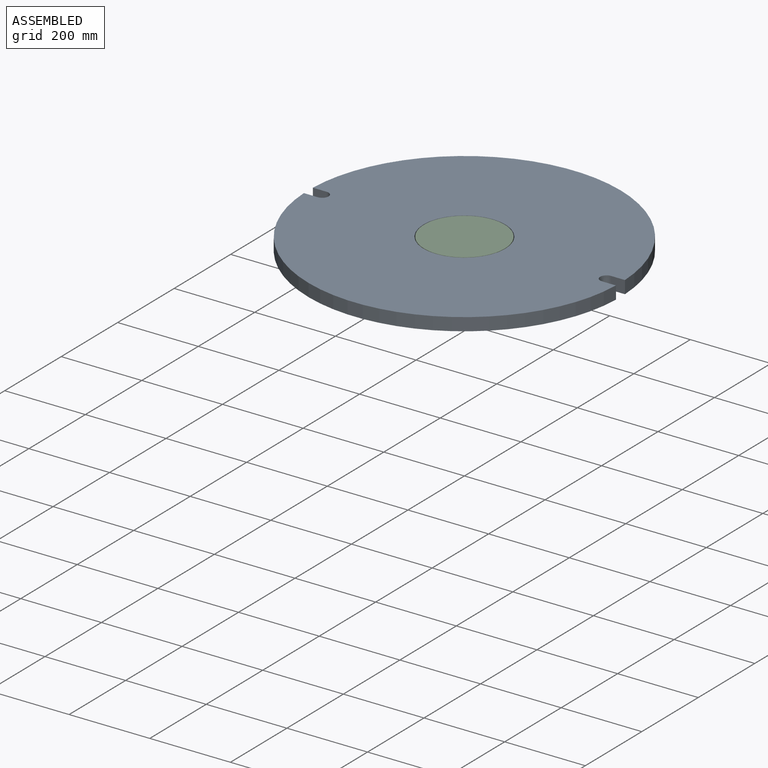
[diagram: assembled view]
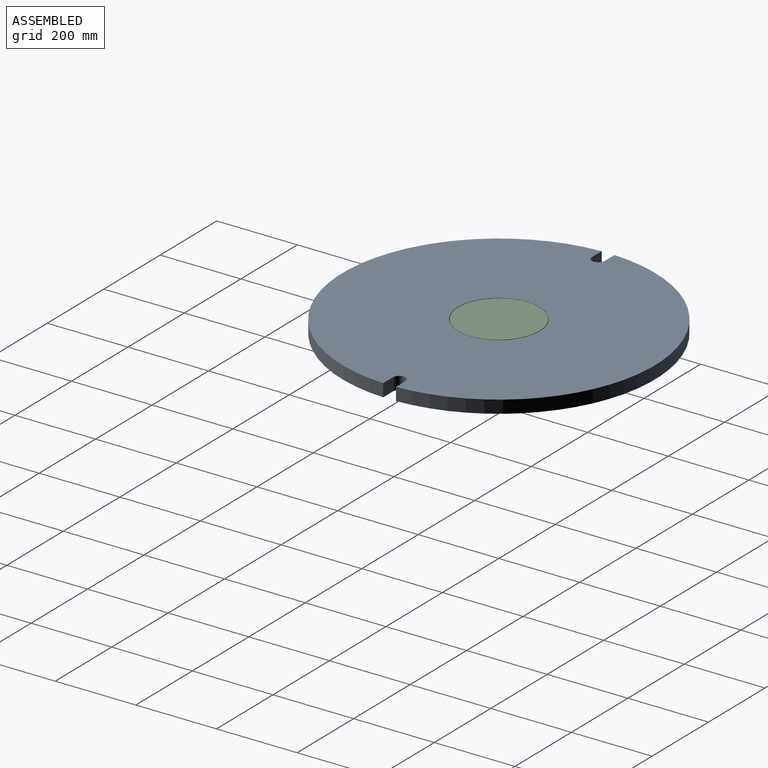
[diagram: assembled view, second angle]
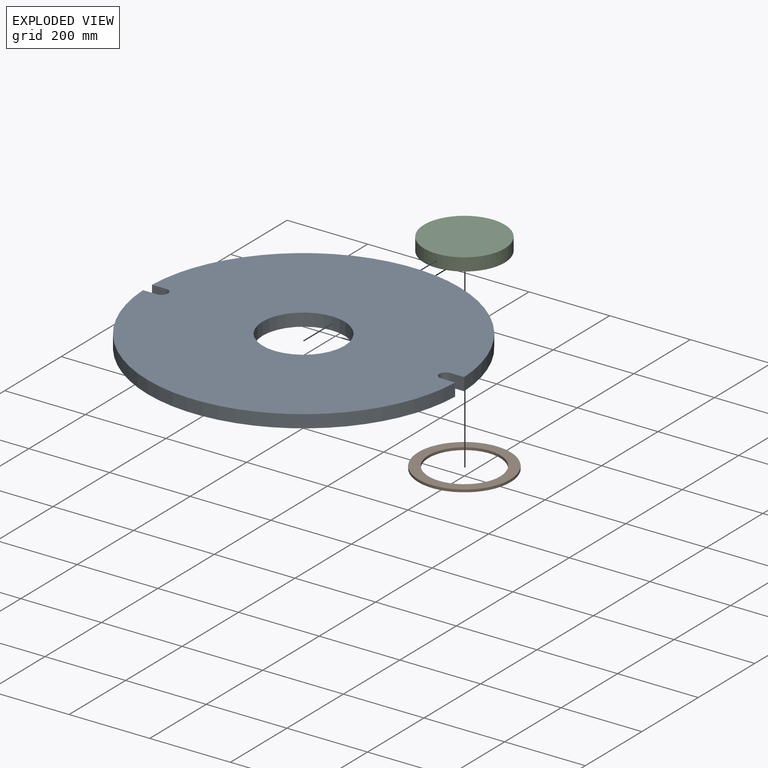
[diagram: exploded view]
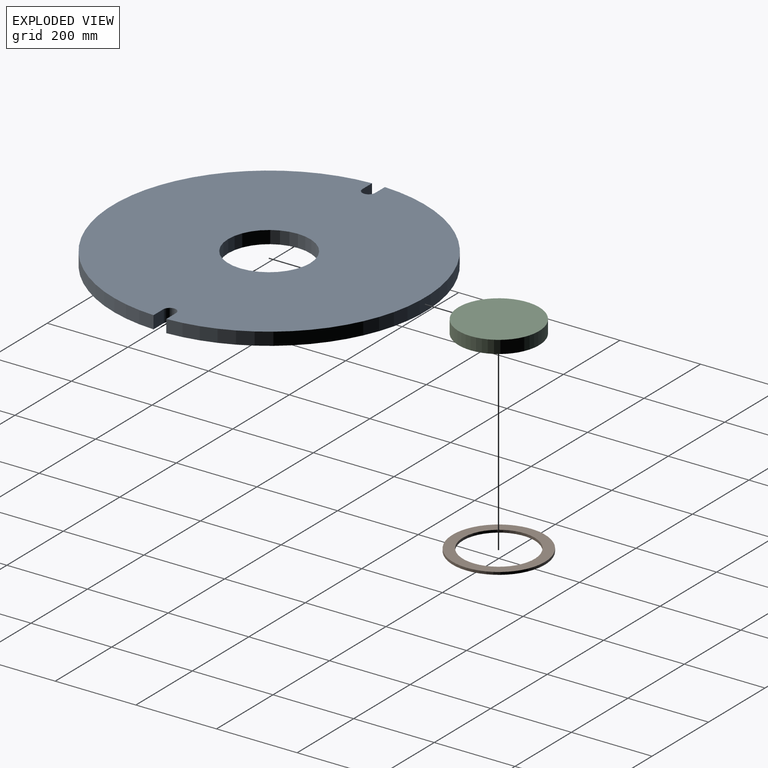
[diagram: exploded view, second angle]
ASSEMBLY  parts=3 mates=2
PART A: 11 faces, bbox 774x774.7x31.8 mm
  f0: cylinder r=387.35mm len=774.05mm, axis (0,0,-1), area 37628.1mm2, adj f1,f8,f9,f10
  f1: plane 34.6x31.75mm, normal (0,-1,0), area 1098.5mm2, adj f0,f2,f9,f10
  f2: cylinder r=15.88mm len=31.75mm, axis (0,0,-1), area 1583.5mm2, adj f1,f3,f9,f10
  f3: plane 34.6x31.75mm, normal (0,1,0), area 1098.5mm2, adj f2,f4,f9,f10
  f4: cylinder r=387.35mm len=774.05mm, axis (0,0,-1), area 37628.1mm2, adj f3,f5,f9,f10
  f5: plane 34.6x31.75mm, normal (0,1,0), area 1098.5mm2, adj f4,f6,f9,f10
  f6: cylinder r=15.88mm len=31.75mm, axis (0,0,-1), area 1583.5mm2, adj f5,f8,f9,f10
  f7: cylinder r=101.6mm len=203.2mm, axis (0,0,-1), area 20268.3mm2, adj f9,f10
  f8: plane 34.6x31.75mm, normal (0,-1,0), area 1098.5mm2, adj f0,f6,f9,f10
  f9: plane 774.7x774.05mm, normal (0,0,1), area 435932.8mm2, adj f0,f1,f2,f3,f4,f5,f6,f7
  f10: plane 774.7x774.05mm, normal (0,0,-1), area 435932.8mm2, adj f0,f1,f2,f3,f4,f5,f6,f7
PART B: 4 faces, bbox 228.6x228.6x6.4 mm
  f0: cylinder r=88.9mm len=177.8mm, axis (0,0,-1), area 3547mm2, adj f2,f3
  f1: cylinder r=114.3mm len=228.6mm, axis (0,0,-1), area 4560.4mm2, adj f2,f3
  f2: plane 228.6x228.6mm, normal (0,0,1), area 16214.6mm2, adj f0,f1
  f3: plane 228.6x228.6mm, normal (0,0,-1), area 16214.6mm2, adj f0,f1
PART C: 3 faces, bbox 200x200x31.8 mm
  f0: cylinder r=100.01mm len=200.03mm, axis (0,0,-1), area 19951.6mm2, adj f1,f2
  f1: plane 200.03x200.03mm, normal (0,0,1), area 31423.8mm2, adj f0
  f2: plane 200.03x200.03mm, normal (0,0,-1), area 31423.8mm2, adj f0
PLACE A at identity fixed
PLACE B t=(0,0,-6.35)mm
PLACE C at identity
MATE slider C.f0 <-> A.f7  axis (0,0,1) through (0,0,31.75)mm
MATE fastened A.f7 <-> B.f0  axis (0,0,-1) through (0,0,0)mm
